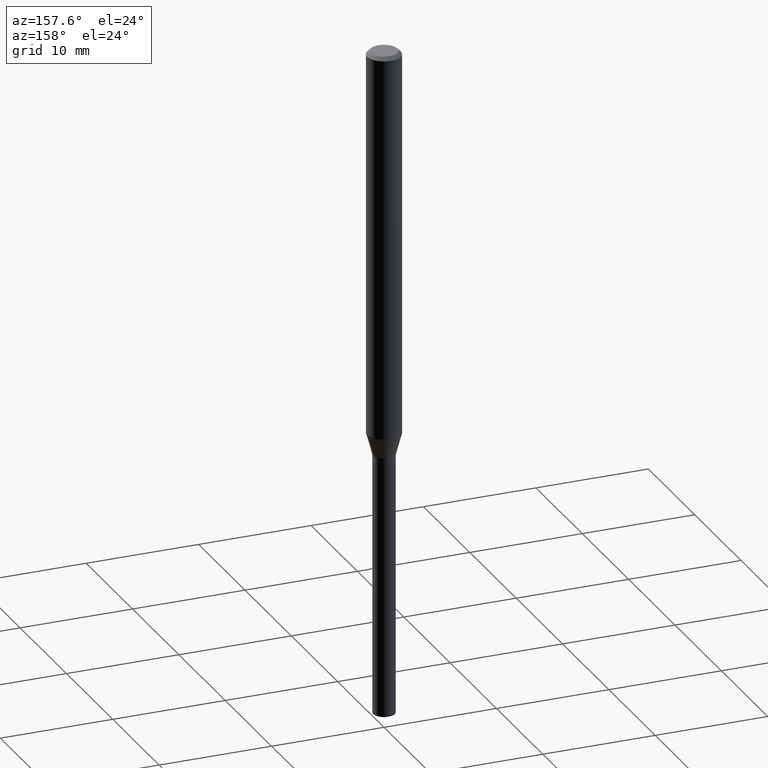
[diagram: clean part render]
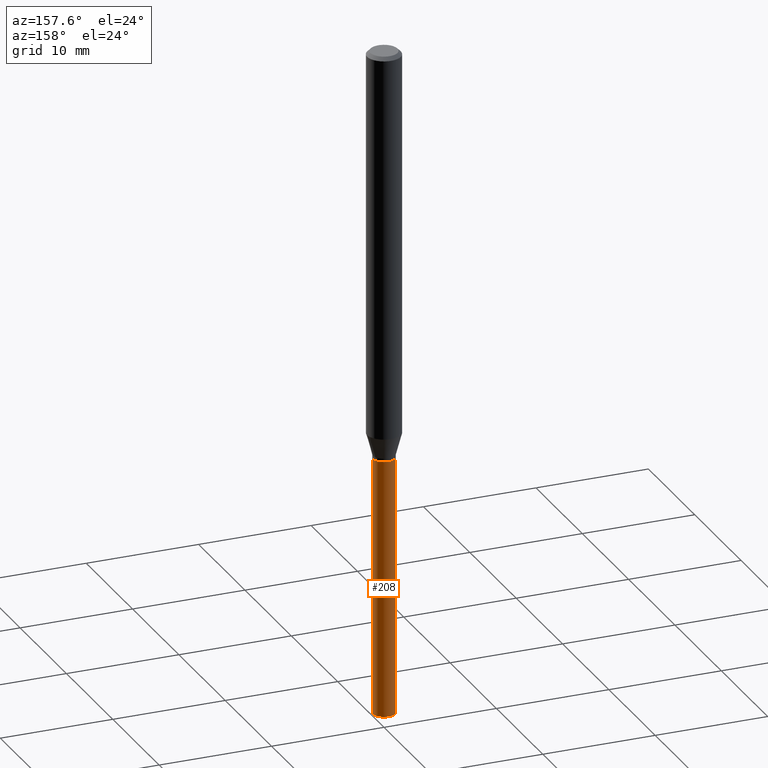
[diagram: same view with one face highlighted and labeled with its STEP entity id]
A machine part, auxiliary view. The second image highlights one B-rep face of the part: STEP entity #208.
In plain terms, the highlighted cylindrical surface (edge-blend (fillet) strip) has radius 0.9754 mm, axis along (-0, 0, 1).
Its self-contained STEP definition (entity closure, byte-faithful):
#14 = DIRECTION ( 'NONE',  ( 1.000000000000000000, -6.982962677686277755E-15, 0.000000000000000000 ) ) ;
#18 = DIRECTION ( 'NONE',  ( -2.445468806185136597E-29, 3.491481338843145583E-15, 1.000000000000000000 ) ) ;
#21 = ORIENTED_EDGE ( 'NONE', *, *, #193, .T. ) ;
#25 = EDGE_LOOP ( 'NONE', ( #39, #21, #394, #180 ) ) ;
#32 = CARTESIAN_POINT ( 'NONE',  ( 3.523186909070927115E-29, -5.030177164871321543E-15, -1.440700000000000314 ) ) ;
#39 = ORIENTED_EDGE ( 'NONE', *, *, #108, .T. ) ;
#40 = VERTEX_POINT ( 'NONE', #75 ) ;
#73 = CIRCLE ( 'NONE', #194, 0.03839999999999999664 ) ;
#75 = CARTESIAN_POINT ( 'NONE',  ( 0.03839999999999998970, -8.452505476884922181E-15, -2.344093785926848028 ) ) ;
#86 = LINE ( 'NONE', #242, #104 ) ;
#103 = VECTOR ( 'NONE', #352, 39.37007874015748143 ) ;
#104 = VECTOR ( 'NONE', #403, 39.37007874015748143 ) ;
#108 = EDGE_CURVE ( 'NONE', #40, #346, #73, .T. ) ;
#118 = CARTESIAN_POINT ( 'NONE',  ( 0.03839999999999999664, -5.298322931694473957E-15, -1.440700000000000314 ) ) ;
#124 = CARTESIAN_POINT ( 'NONE',  ( 0.03839999999999999664, -5.298322931694473957E-15, -1.440700000000000314 ) ) ;
#140 = DIRECTION ( 'NONE',  ( -2.445468806185136597E-29, 3.491481338843145583E-15, 1.000000000000000000 ) ) ;
#145 = VERTEX_POINT ( 'NONE', #124 ) ;
#147 = EDGE_CURVE ( 'NONE', #40, #145, #406, .T. ) ;
#180 = ORIENTED_EDGE ( 'NONE', *, *, #147, .F. ) ;
#189 = CARTESIAN_POINT ( 'NONE',  ( -0.03839999999999999664, -6.334420026934666468E-15, -1.440700000000000314 ) ) ;
#193 = EDGE_CURVE ( 'NONE', #346, #342, #86, .T. ) ;
#194 = AXIS2_PLACEMENT_3D ( 'NONE', #437, #18, #468 ) ;
#208 = ADVANCED_FACE ( 'NONE', ( #240 ), #356, .T. ) ;
#210 = DIRECTION ( 'NONE',  ( -2.445468806185136597E-29, 3.491481338843145583E-15, 1.000000000000000000 ) ) ;
#240 = FACE_OUTER_BOUND ( 'NONE', #25, .T. ) ;
#241 = AXIS2_PLACEMENT_3D ( 'NONE', #32, #140, #381 ) ;
#242 = CARTESIAN_POINT ( 'NONE',  ( -0.03839999999999999664, -4.757328754339442356E-15, -1.440700000000000314 ) ) ;
#309 = EDGE_CURVE ( 'NONE', #145, #342, #464, .T. ) ;
#338 = CARTESIAN_POINT ( 'NONE',  ( -0.03839999999999998970, -7.911511299529891368E-15, -2.344093785926848028 ) ) ;
#342 = VERTEX_POINT ( 'NONE', #189 ) ;
#346 = VERTEX_POINT ( 'NONE', #338 ) ;
#352 = DIRECTION ( 'NONE',  ( -2.445468806185136877E-29, 3.491481338843145188E-15, 1.000000000000000000 ) ) ;
#356 = CYLINDRICAL_SURFACE ( 'NONE', #399, 0.03839999999999999664 ) ;
#381 = DIRECTION ( 'NONE',  ( 1.000000000000000000, -6.982962677686277755E-15, 0.000000000000000000 ) ) ;
#394 = ORIENTED_EDGE ( 'NONE', *, *, #309, .F. ) ;
#399 = AXIS2_PLACEMENT_3D ( 'NONE', #439, #210, #14 ) ;
#403 = DIRECTION ( 'NONE',  ( -2.445468806185136877E-29, 3.491481338843145188E-15, 1.000000000000000000 ) ) ;
#406 = LINE ( 'NONE', #118, #103 ) ;
#437 = CARTESIAN_POINT ( 'NONE',  ( 5.732408232256526477E-29, -8.184359710061769767E-15, -2.344093785926848028 ) ) ;
#439 = CARTESIAN_POINT ( 'NONE',  ( 3.523186909070927115E-29, -5.030177164871321543E-15, -1.440700000000000314 ) ) ;
#464 = CIRCLE ( 'NONE', #241, 0.03839999999999999664 ) ;
#468 = DIRECTION ( 'NONE',  ( 1.000000000000000000, -6.982962677686277755E-15, 0.000000000000000000 ) ) ;